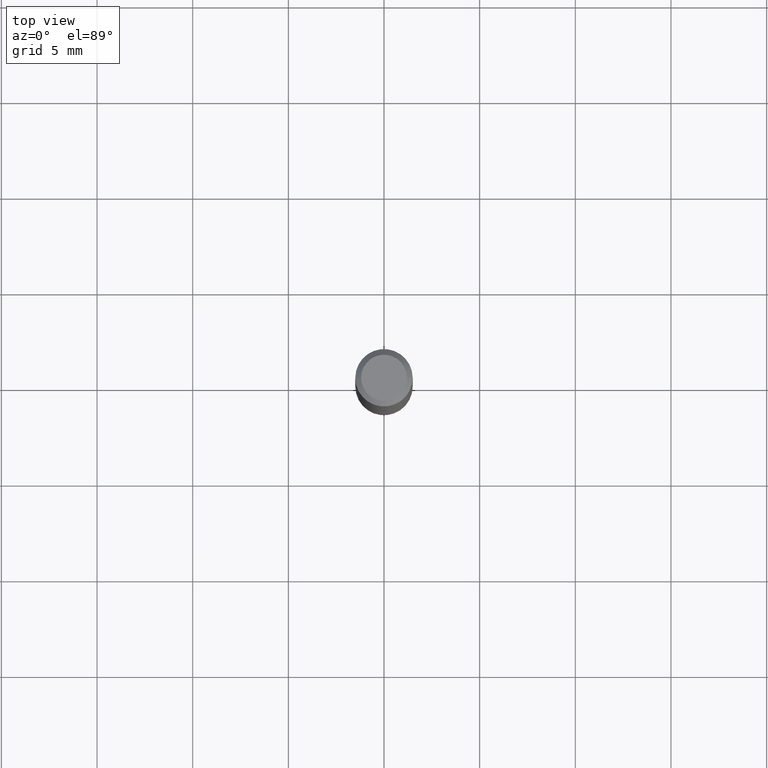
[diagram: clean part render]
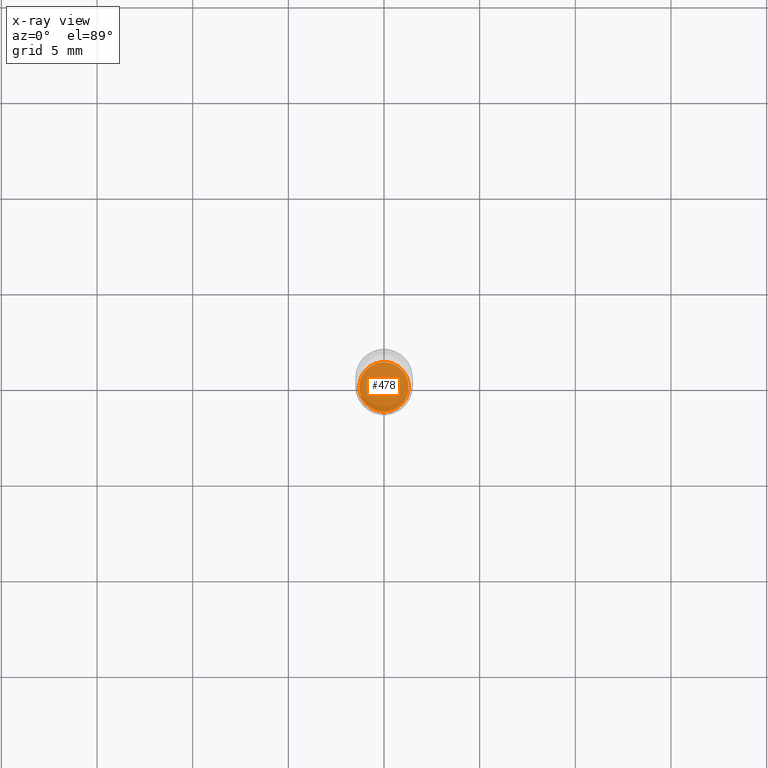
[diagram: x-ray — body ghosted, one internal face saturated and labeled with its STEP entity id]
A machine part, top view, then the same camera in x-ray: the body is ghosted and one INTERNAL B-rep face — a face not visible from any outside direction — is saturated and labeled: STEP entity #478.
In plain terms, the highlighted planar face has unit normal (-0, 0, 1).
Its self-contained STEP definition (entity closure, byte-faithful):
#10 = EDGE_CURVE ( 'NONE', #230, #161, #411, .T. ) ;
#82 = PLANE ( 'NONE',  #164 ) ;
#87 = CARTESIAN_POINT ( 'NONE',  ( 2.676565608369632355E-29, -3.821426325363822773E-15, -1.094500000000000028 ) ) ;
#108 = DIRECTION ( 'NONE',  ( 1.000000000000000000, -6.982962677686261977E-15, 0.000000000000000000 ) ) ;
#161 = VERTEX_POINT ( 'NONE', #315 ) ;
#164 = AXIS2_PLACEMENT_3D ( 'NONE', #276, #196, #359 ) ;
#175 = ORIENTED_EDGE ( 'NONE', *, *, #261, .F. ) ;
#183 = EDGE_LOOP ( 'NONE', ( #243, #175 ) ) ;
#196 = DIRECTION ( 'NONE',  ( -2.438088387897960049E-29, 3.491481338843145188E-15, 1.000000000000000000 ) ) ;
#202 = CARTESIAN_POINT ( 'NONE',  ( 0.05090000000000000080, -4.176859125658053522E-15, -1.094500000000000028 ) ) ;
#221 = AXIS2_PLACEMENT_3D ( 'NONE', #335, #451, #108 ) ;
#229 = AXIS2_PLACEMENT_3D ( 'NONE', #87, #420, #383 ) ;
#230 = VERTEX_POINT ( 'NONE', #202 ) ;
#243 = ORIENTED_EDGE ( 'NONE', *, *, #10, .F. ) ;
#261 = EDGE_CURVE ( 'NONE', #161, #230, #360, .T. ) ;
#276 = CARTESIAN_POINT ( 'NONE',  ( 6.255723195914554260E-30, -6.758565450182621025E-15, -1.094500000000000028 ) ) ;
#315 = CARTESIAN_POINT ( 'NONE',  ( -0.05090000000000000080, -3.457110845687820572E-15, -1.094500000000000028 ) ) ;
#322 = FACE_OUTER_BOUND ( 'NONE', #183, .T. ) ;
#335 = CARTESIAN_POINT ( 'NONE',  ( 2.676565608369632355E-29, -3.821426325363822773E-15, -1.094500000000000028 ) ) ;
#359 = DIRECTION ( 'NONE',  ( 1.000000000000000000, -6.982962677686265922E-15, 4.876176775795935793E-29 ) ) ;
#360 = CIRCLE ( 'NONE', #229, 0.05090000000000000080 ) ;
#383 = DIRECTION ( 'NONE',  ( 1.000000000000000000, -6.982962677686261977E-15, 0.000000000000000000 ) ) ;
#411 = CIRCLE ( 'NONE', #221, 0.05090000000000000080 ) ;
#420 = DIRECTION ( 'NONE',  ( -2.445468806185136597E-29, 3.491481338843145583E-15, 1.000000000000000000 ) ) ;
#451 = DIRECTION ( 'NONE',  ( -2.445468806185136597E-29, 3.491481338843145583E-15, 1.000000000000000000 ) ) ;
#478 = ADVANCED_FACE ( 'NONE', ( #322 ), #82, .F. ) ;